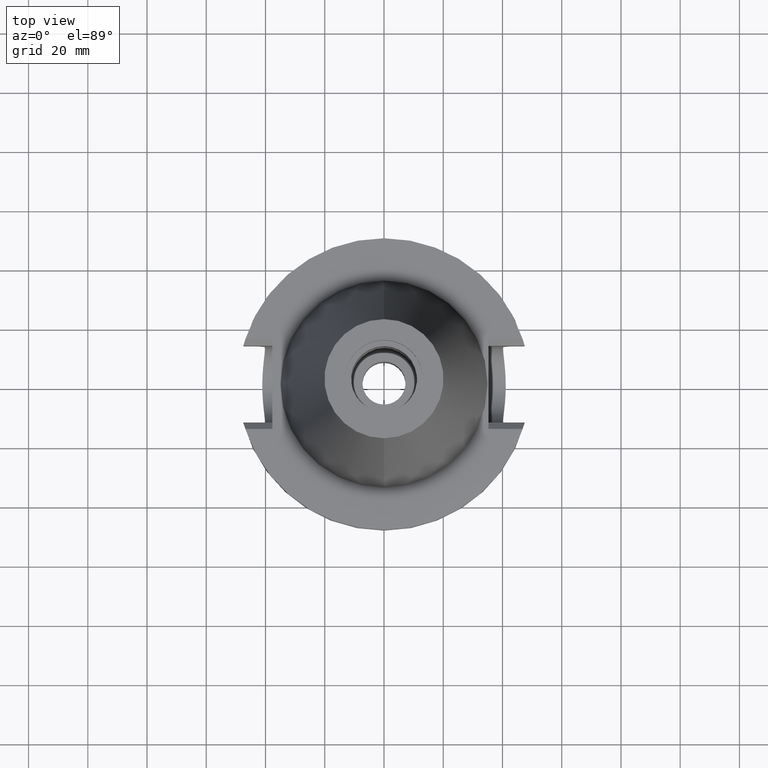
[diagram: clean part render]
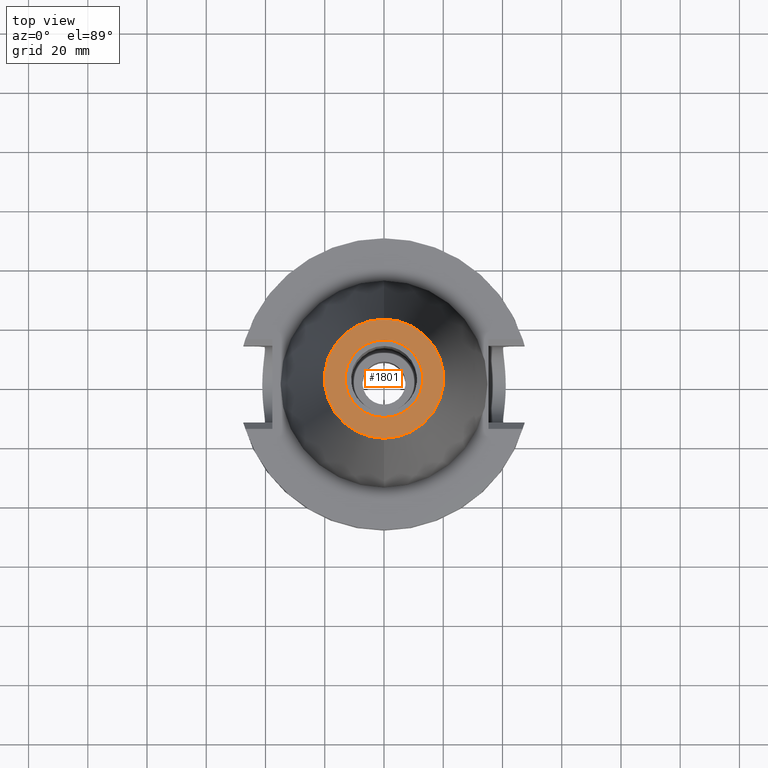
[diagram: same view with one face highlighted and labeled with its STEP entity id]
A machine part, top view. The second image highlights one B-rep face of the part: STEP entity #1801.
In plain terms, the highlighted planar face has unit normal (0, 0, -1).
Its self-contained STEP definition (entity closure, byte-faithful):
#17=CARTESIAN_POINT('',(0.E0,1.846767373114E-14,1.016E2));
#18=DIRECTION('',(0.E0,0.E0,-1.E0));
#19=DIRECTION('',(0.E0,-1.E0,0.E0));
#20=AXIS2_PLACEMENT_3D('',#17,#18,#19);
#26=CARTESIAN_POINT('',(0.E0,1.846767373114E-14,1.016E2));
#27=DIRECTION('',(0.E0,0.E0,-1.E0));
#28=DIRECTION('',(0.E0,1.E0,0.E0));
#29=AXIS2_PLACEMENT_3D('',#26,#27,#28);
#34=CARTESIAN_POINT('',(0.E0,2.594781638033E-14,1.016E2));
#35=DIRECTION('',(0.E0,0.E0,1.E0));
#36=DIRECTION('',(0.E0,-1.E0,0.E0));
#37=AXIS2_PLACEMENT_3D('',#34,#35,#36);
#42=CARTESIAN_POINT('',(0.E0,2.594781638033E-14,1.016E2));
#43=DIRECTION('',(0.E0,0.E0,1.E0));
#44=DIRECTION('',(0.E0,1.E0,0.E0));
#45=AXIS2_PLACEMENT_3D('',#42,#43,#44);
#1541=CARTESIAN_POINT('',(0.E0,-2.010832422388E1,1.016E2));
#1542=CARTESIAN_POINT('',(0.E0,2.010832422388E1,1.016E2));
#1543=VERTEX_POINT('',#1541);
#1544=VERTEX_POINT('',#1542);
#1545=CARTESIAN_POINT('',(0.E0,-1.3115E1,1.016E2));
#1546=CARTESIAN_POINT('',(0.E0,1.3115E1,1.016E2));
#1547=VERTEX_POINT('',#1545);
#1548=VERTEX_POINT('',#1546);
#1784=CARTESIAN_POINT('',(0.E0,2.468887947081E-14,1.016E2));
#1785=DIRECTION('',(0.E0,0.E0,-1.E0));
#1786=DIRECTION('',(0.E0,-1.E0,0.E0));
#1787=AXIS2_PLACEMENT_3D('',#1784,#1785,#1786);
#1788=PLANE('',#1787);
#1790=ORIENTED_EDGE('',*,*,#1789,.T.);
#1792=ORIENTED_EDGE('',*,*,#1791,.T.);
#1793=EDGE_LOOP('',(#1790,#1792));
#1794=FACE_OUTER_BOUND('',#1793,.F.);
#1796=ORIENTED_EDGE('',*,*,#1795,.T.);
#1798=ORIENTED_EDGE('',*,*,#1797,.T.);
#1799=EDGE_LOOP('',(#1796,#1798));
#1800=FACE_BOUND('',#1799,.F.);
#21=CIRCLE('',#20,2.010832422388E1);
#30=CIRCLE('',#29,2.010832422388E1);
#38=CIRCLE('',#37,1.3115E1);
#46=CIRCLE('',#45,1.3115E1);
#1789=EDGE_CURVE('',#1543,#1544,#21,.T.);
#1791=EDGE_CURVE('',#1544,#1543,#30,.T.);
#1795=EDGE_CURVE('',#1547,#1548,#38,.T.);
#1797=EDGE_CURVE('',#1548,#1547,#46,.T.);
#1801=ADVANCED_FACE('',(#1794,#1800),#1788,.F.);